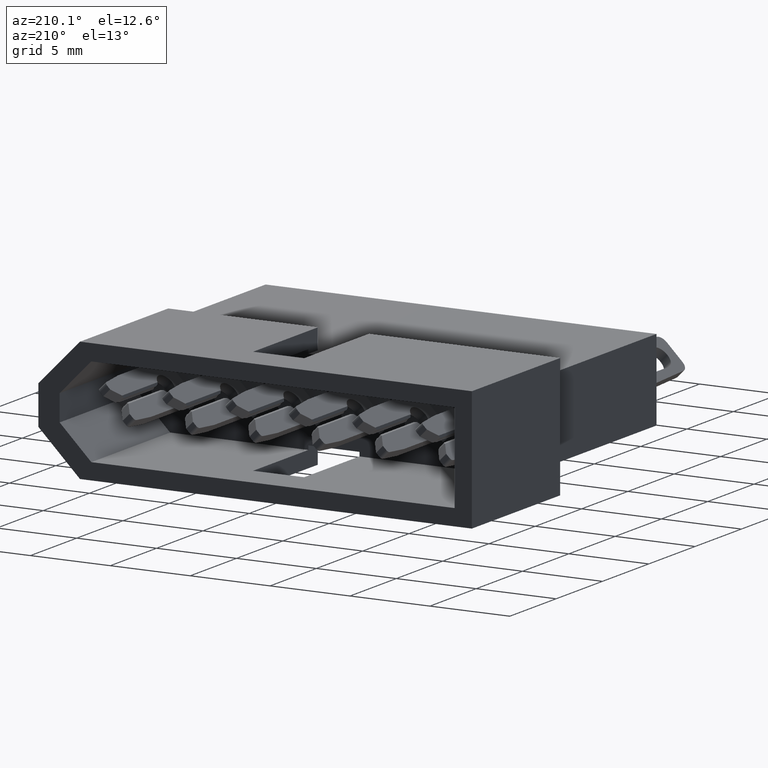
[diagram: clean part render]
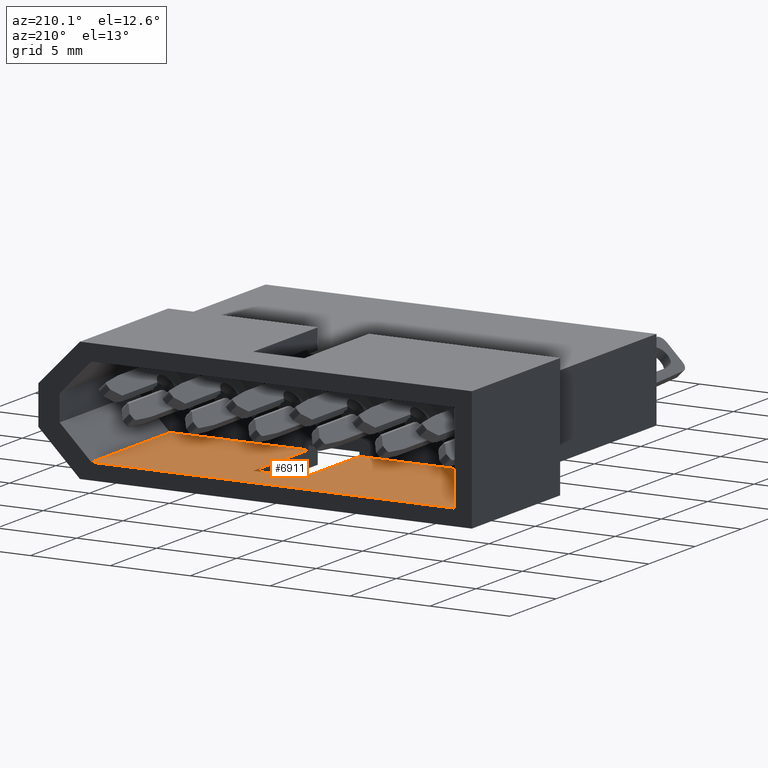
[diagram: same view with one face highlighted and labeled with its STEP entity id]
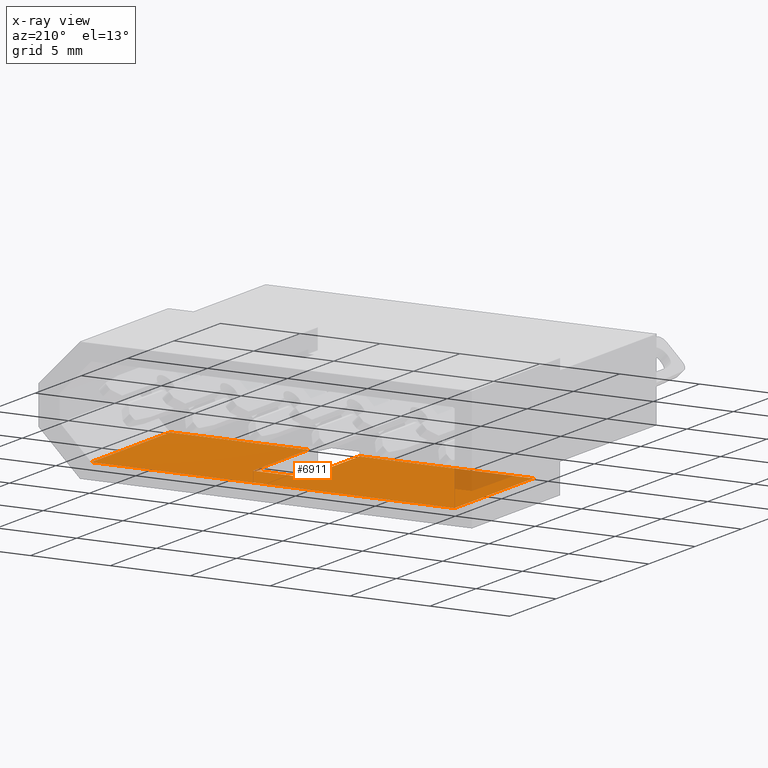
[diagram: x-ray of the same camera — body ghosted, the highlighted face saturated]
A machine part, auxiliary view. The second image highlights one B-rep face of the part: STEP entity #6911.
The next image is the same camera in x-ray: the body ghosted, the highlighted face saturated — about 6% of this face is hidden behind the body in this view.
In plain terms, the highlighted planar face has unit normal (-0, 0, -1).
Its self-contained STEP definition (entity closure, byte-faithful):
#7 = CARTESIAN_POINT ( 'NONE',  ( -2.575109175245272800, 1.015999999999999600, -2.793999999999999200 ) ) ;
#70 = CARTESIAN_POINT ( 'NONE',  ( 11.50620000000000200, 1.015999999999999600, -2.794000000000002700 ) ) ;
#252 = VERTEX_POINT ( 'NONE', #70 ) ;
#346 = CARTESIAN_POINT ( 'NONE',  ( -2.575109175245272800, 1.015999999999999600, -2.793999999999999200 ) ) ;
#434 = DIRECTION ( 'NONE',  ( -1.000000000000000000, -0.0000000000000000000, 1.526172063499589000E-016 ) ) ;
#545 = EDGE_CURVE ( 'NONE', #5377, #8061, #7206, .T. ) ;
#740 = ORIENTED_EDGE ( 'NONE', *, *, #7557, .F. ) ;
#792 = CARTESIAN_POINT ( 'NONE',  ( 8.305799999999996100, 6.985000000000000300, -2.794000000000000900 ) ) ;
#890 = CARTESIAN_POINT ( 'NONE',  ( -2.575109175245272800, 1.015999999999999600, -2.793999999999999200 ) ) ;
#938 = CARTESIAN_POINT ( 'NONE',  ( 8.305799999999994300, 1.015999999999999600, -2.794000000000002700 ) ) ;
#1298 = ORIENTED_EDGE ( 'NONE', *, *, #3067, .F. ) ;
#1480 = ORIENTED_EDGE ( 'NONE', *, *, #545, .T. ) ;
#1679 = VECTOR ( 'NONE', #8344, 1000.000000000000000 ) ;
#1735 = VERTEX_POINT ( 'NONE', #7777 ) ;
#1879 = EDGE_CURVE ( 'NONE', #4793, #2586, #8033, .T. ) ;
#1999 = VECTOR ( 'NONE', #4238, 1000.000000000000000 ) ;
#2151 = CARTESIAN_POINT ( 'NONE',  ( 20.15789082475472000, 9.525000000000000400, -2.794000000000002700 ) ) ;
#2269 = ORIENTED_EDGE ( 'NONE', *, *, #8031, .F. ) ;
#2306 = PLANE ( 'NONE',  #3642 ) ;
#2579 = FACE_OUTER_BOUND ( 'NONE', #5572, .T. ) ;
#2586 = VERTEX_POINT ( 'NONE', #938 ) ;
#2696 = CARTESIAN_POINT ( 'NONE',  ( 20.15789082475472000, 1.015999999999999600, -2.794000000000002700 ) ) ;
#2703 = VECTOR ( 'NONE', #5112, 1000.000000000000000 ) ;
#3060 = CARTESIAN_POINT ( 'NONE',  ( -2.575109175245272800, 6.985000000000000300, -2.793999999999999200 ) ) ;
#3067 = EDGE_CURVE ( 'NONE', #6439, #6875, #5802, .T. ) ;
#3642 = AXIS2_PLACEMENT_3D ( 'NONE', #890, #8141, #8774 ) ;
#4002 = VECTOR ( 'NONE', #5295, 1000.000000000000000 ) ;
#4165 = DIRECTION ( 'NONE',  ( -0.0000000000000000000, 1.000000000000000000, -0.0000000000000000000 ) ) ;
#4238 = DIRECTION ( 'NONE',  ( -1.000000000000000000, -0.0000000000000000000, 1.526172063499589000E-016 ) ) ;
#4323 = CARTESIAN_POINT ( 'NONE',  ( 20.15789082475472000, 1.015999999999999600, -2.794000000000002700 ) ) ;
#4414 = ORIENTED_EDGE ( 'NONE', *, *, #6010, .T. ) ;
#4517 = LINE ( 'NONE', #3060, #2703 ) ;
#4641 = CARTESIAN_POINT ( 'NONE',  ( -2.575109175245272800, 9.525000000000000400, -2.793999999999999200 ) ) ;
#4655 = VECTOR ( 'NONE', #7078, 1000.000000000000000 ) ;
#4736 = VECTOR ( 'NONE', #434, 1000.000000000000000 ) ;
#4793 = VERTEX_POINT ( 'NONE', #792 ) ;
#4936 = DIRECTION ( 'NONE',  ( -4.966996352116842500E-016, 1.000000000000000000, 7.580491072105092800E-032 ) ) ;
#5112 = DIRECTION ( 'NONE',  ( -1.000000000000000000, 0.0000000000000000000, 1.526172063499589000E-016 ) ) ;
#5227 = ORIENTED_EDGE ( 'NONE', *, *, #6545, .F. ) ;
#5295 = DIRECTION ( 'NONE',  ( -0.0000000000000000000, 1.000000000000000000, -0.0000000000000000000 ) ) ;
#5377 = VERTEX_POINT ( 'NONE', #4323 ) ;
#5572 = EDGE_LOOP ( 'NONE', ( #5227, #2269, #1480, #4414, #1298, #740, #7490, #9268 ) ) ;
#5802 = LINE ( 'NONE', #6760, #4002 ) ;
#5969 = VECTOR ( 'NONE', #4165, 1000.000000000000000 ) ;
#6010 = EDGE_CURVE ( 'NONE', #8061, #6875, #8594, .T. ) ;
#6439 = VERTEX_POINT ( 'NONE', #346 ) ;
#6545 = EDGE_CURVE ( 'NONE', #252, #1735, #7119, .T. ) ;
#6660 = VECTOR ( 'NONE', #4936, 1000.000000000000000 ) ;
#6721 = EDGE_CURVE ( 'NONE', #1735, #4793, #4517, .T. ) ;
#6760 = CARTESIAN_POINT ( 'NONE',  ( -2.575109175245272800, 1.015999999999999600, -2.793999999999999200 ) ) ;
#6875 = VERTEX_POINT ( 'NONE', #7280 ) ;
#6911 = ADVANCED_FACE ( 'NONE', ( #2579 ), #2306, .F. ) ;
#7044 = CARTESIAN_POINT ( 'NONE',  ( 11.50620000000000200, 1.016000000000006500, -2.794000000000001400 ) ) ;
#7078 = DIRECTION ( 'NONE',  ( -2.483498176058421200E-016, -1.000000000000000000, 3.790245536052546400E-032 ) ) ;
#7119 = LINE ( 'NONE', #7044, #6660 ) ;
#7206 = LINE ( 'NONE', #2696, #5969 ) ;
#7280 = CARTESIAN_POINT ( 'NONE',  ( -2.575109175245272800, 9.525000000000000400, -2.793999999999999200 ) ) ;
#7437 = LINE ( 'NONE', #9122, #4736 ) ;
#7490 = ORIENTED_EDGE ( 'NONE', *, *, #1879, .F. ) ;
#7557 = EDGE_CURVE ( 'NONE', #2586, #6439, #7437, .T. ) ;
#7649 = LINE ( 'NONE', #7, #1999 ) ;
#7777 = CARTESIAN_POINT ( 'NONE',  ( 11.50619999999999800, 6.985000000000000300, -2.794000000000001400 ) ) ;
#8031 = EDGE_CURVE ( 'NONE', #5377, #252, #7649, .T. ) ;
#8033 = LINE ( 'NONE', #8638, #4655 ) ;
#8061 = VERTEX_POINT ( 'NONE', #2151 ) ;
#8141 = DIRECTION ( 'NONE',  ( -1.526172063499589000E-016, 0.0000000000000000000, -1.000000000000000000 ) ) ;
#8344 = DIRECTION ( 'NONE',  ( -1.000000000000000000, -0.0000000000000000000, 1.526172063499589000E-016 ) ) ;
#8594 = LINE ( 'NONE', #4641, #1679 ) ;
#8638 = CARTESIAN_POINT ( 'NONE',  ( 8.305799999999994300, 1.015999999999996900, -2.794000000000000900 ) ) ;
#8774 = DIRECTION ( 'NONE',  ( -1.000000000000000000, 0.0000000000000000000, 1.526172063499589000E-016 ) ) ;
#9122 = CARTESIAN_POINT ( 'NONE',  ( -2.575109175245272800, 1.015999999999999600, -2.793999999999999200 ) ) ;
#9268 = ORIENTED_EDGE ( 'NONE', *, *, #6721, .F. ) ;